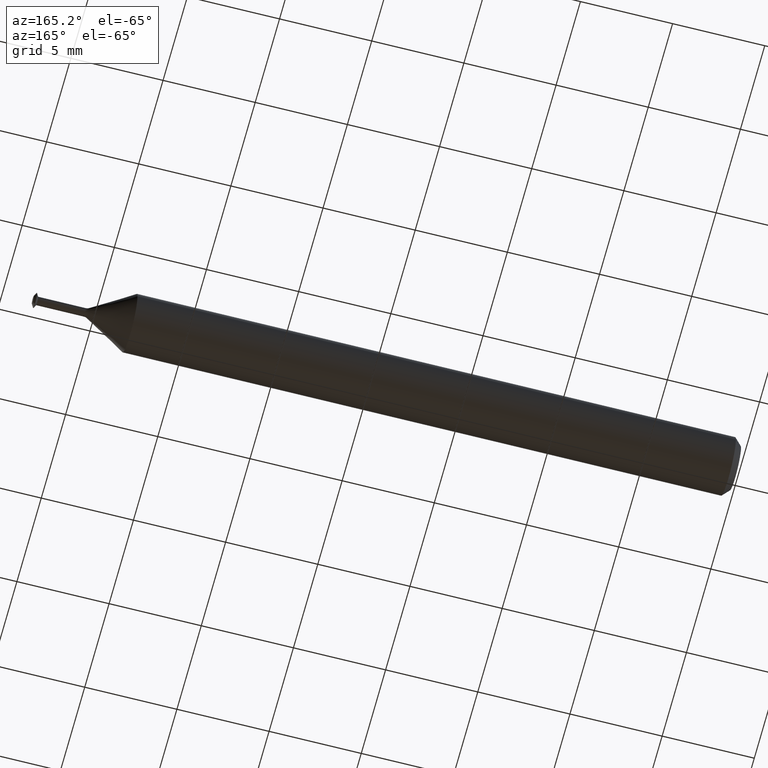
[diagram: clean part render]
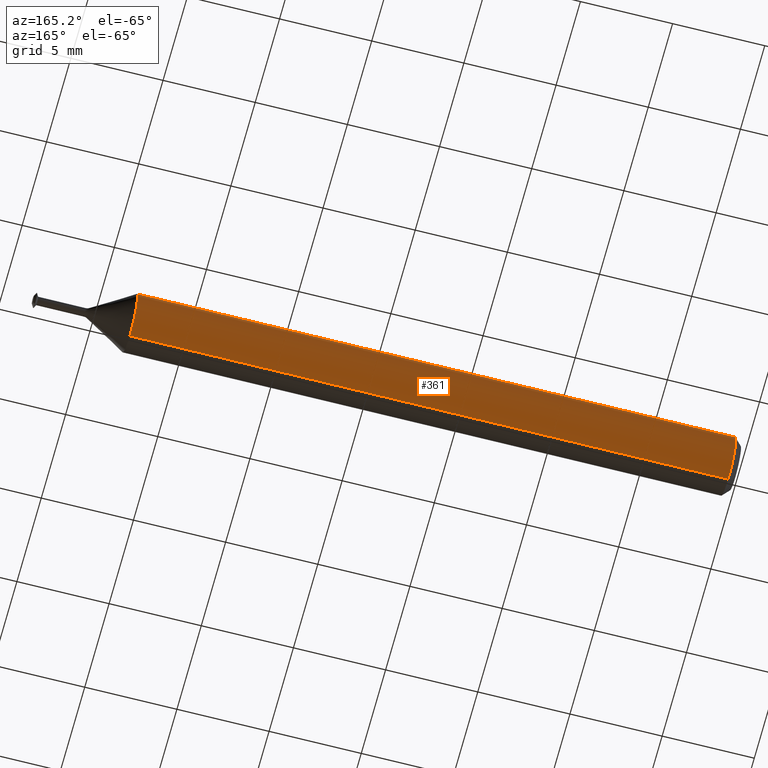
[diagram: same view with one face highlighted and labeled with its STEP entity id]
A machine part, auxiliary view. The second image highlights one B-rep face of the part: STEP entity #361.
In plain terms, the highlighted cylindrical surface (edge-blend (fillet) strip) has radius 1.5837 mm, axis along (-1, -0, -0).
Its self-contained STEP definition (entity closure, byte-faithful):
#1 = CARTESIAN_POINT ( 'NONE',  ( 1.292941102884447746, 0.0000000000000000000, 0.06235000000000000958 ) ) ;
#11 = DIRECTION ( 'NONE',  ( -1.000000000000000000, -0.0000000000000000000, -0.0000000000000000000 ) ) ;
#16 = LINE ( 'NONE', #220, #110 ) ;
#18 = EDGE_LOOP ( 'NONE', ( #329, #162, #461, #331 ) ) ;
#29 = VERTEX_POINT ( 'NONE', #104 ) ;
#33 = DIRECTION ( 'NONE',  ( 0.0000000000000000000, 0.0000000000000000000, 1.000000000000000000 ) ) ;
#36 = EDGE_CURVE ( 'NONE', #284, #197, #167, .T. ) ;
#40 = EDGE_CURVE ( 'NONE', #284, #297, #121, .T. ) ;
#50 = VECTOR ( 'NONE', #54, 39.37007874015748143 ) ;
#54 = DIRECTION ( 'NONE',  ( -1.000000000000000000, -0.0000000000000000000, -0.0000000000000000000 ) ) ;
#58 = CIRCLE ( 'NONE', #195, 0.06235000000000000264 ) ;
#104 = CARTESIAN_POINT ( 'NONE',  ( 0.01499999999999996649, 7.635672792683746671E-18, -0.06235000000000000264 ) ) ;
#110 = VECTOR ( 'NONE', #11, 39.37007874015748143 ) ;
#117 = EDGE_CURVE ( 'NONE', #29, #297, #58, .T. ) ;
#119 = CARTESIAN_POINT ( 'NONE',  ( 0.0000000000000000000, 0.0000000000000000000, 0.0000000000000000000 ) ) ;
#121 = LINE ( 'NONE', #223, #50 ) ;
#145 = EDGE_CURVE ( 'NONE', #197, #29, #16, .T. ) ;
#162 = ORIENTED_EDGE ( 'NONE', *, *, #145, .T. ) ;
#167 = CIRCLE ( 'NONE', #433, 0.06235000000000000264 ) ;
#195 = AXIS2_PLACEMENT_3D ( 'NONE', #439, #328, #435 ) ;
#197 = VERTEX_POINT ( 'NONE', #442 ) ;
#220 = CARTESIAN_POINT ( 'NONE',  ( 0.0000000000000000000, 7.635672792683746671E-18, -0.06235000000000000264 ) ) ;
#223 = CARTESIAN_POINT ( 'NONE',  ( 0.0000000000000000000, 0.0000000000000000000, 0.06235000000000000264 ) ) ;
#266 = DIRECTION ( 'NONE',  ( 0.0000000000000000000, 0.0000000000000000000, 1.000000000000000000 ) ) ;
#284 = VERTEX_POINT ( 'NONE', #1 ) ;
#286 = CYLINDRICAL_SURFACE ( 'NONE', #316, 0.06235000000000000264 ) ;
#295 = FACE_OUTER_BOUND ( 'NONE', #18, .T. ) ;
#297 = VERTEX_POINT ( 'NONE', #318 ) ;
#316 = AXIS2_PLACEMENT_3D ( 'NONE', #119, #346, #33 ) ;
#318 = CARTESIAN_POINT ( 'NONE',  ( 0.01499999999999996649, 0.0000000000000000000, 0.06235000000000000264 ) ) ;
#328 = DIRECTION ( 'NONE',  ( 1.000000000000000000, 0.0000000000000000000, 0.0000000000000000000 ) ) ;
#329 = ORIENTED_EDGE ( 'NONE', *, *, #36, .T. ) ;
#331 = ORIENTED_EDGE ( 'NONE', *, *, #40, .F. ) ;
#346 = DIRECTION ( 'NONE',  ( -1.000000000000000000, -0.0000000000000000000, -0.0000000000000000000 ) ) ;
#361 = ADVANCED_FACE ( 'NONE', ( #295 ), #286, .T. ) ;
#433 = AXIS2_PLACEMENT_3D ( 'NONE', #481, #445, #266 ) ;
#435 = DIRECTION ( 'NONE',  ( 0.0000000000000000000, 0.0000000000000000000, -1.000000000000000000 ) ) ;
#439 = CARTESIAN_POINT ( 'NONE',  ( 0.01499999999999996649, 0.0000000000000000000, 0.0000000000000000000 ) ) ;
#442 = CARTESIAN_POINT ( 'NONE',  ( 1.292941102884447746, 7.635672792683748212E-18, -0.06235000000000000958 ) ) ;
#445 = DIRECTION ( 'NONE',  ( -1.000000000000000000, -0.0000000000000000000, -0.0000000000000000000 ) ) ;
#461 = ORIENTED_EDGE ( 'NONE', *, *, #117, .T. ) ;
#481 = CARTESIAN_POINT ( 'NONE',  ( 1.292941102884447746, 0.0000000000000000000, 0.0000000000000000000 ) ) ;